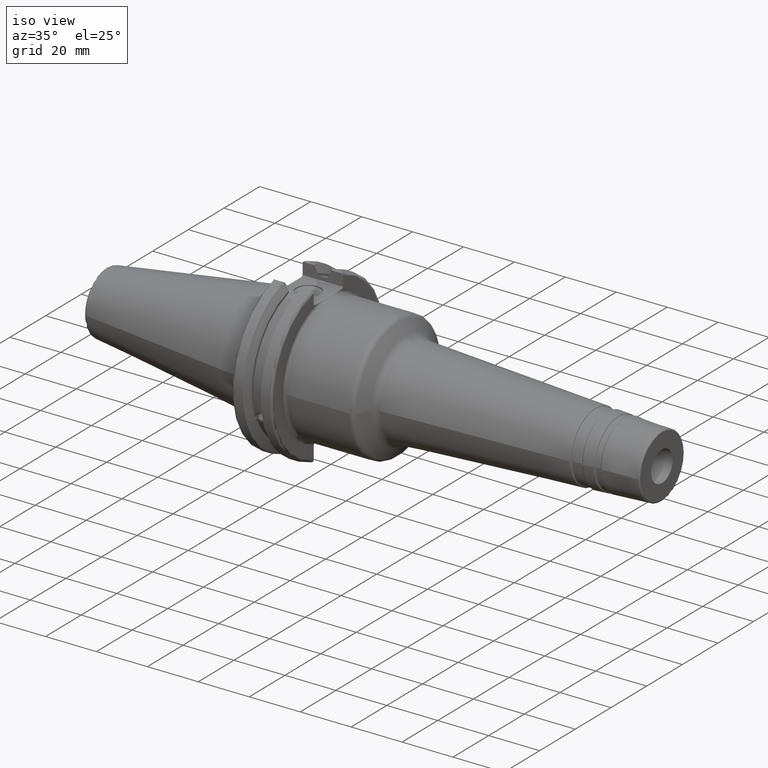
[diagram: clean part render]
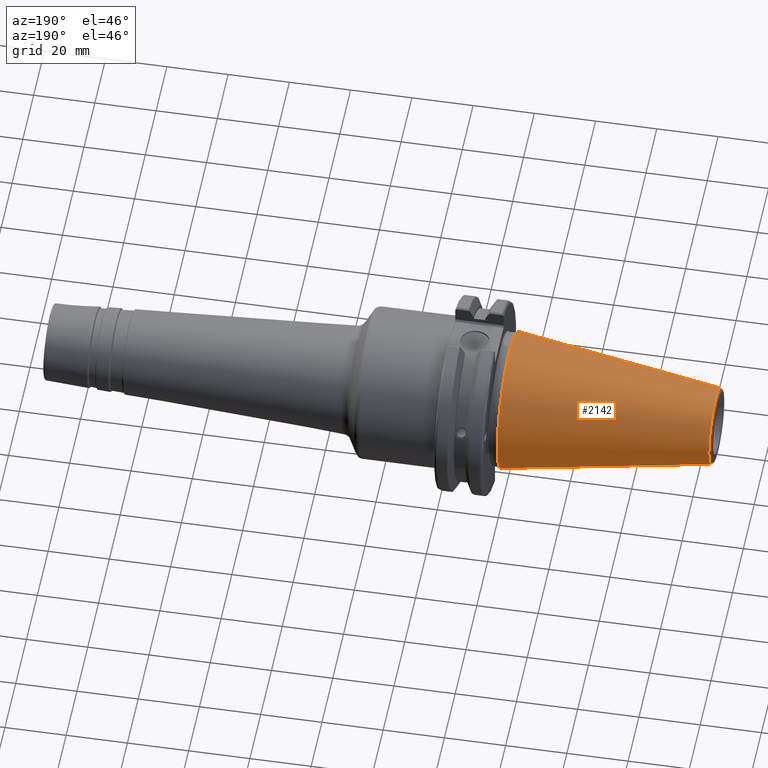
[diagram: tour spotlight — one face highlighted and labeled with its STEP entity id]
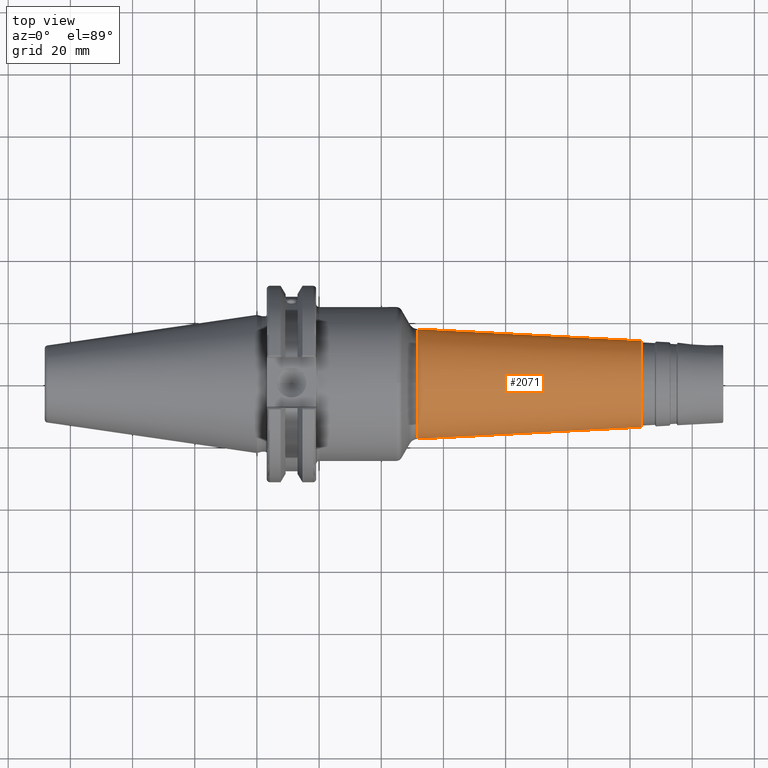
[diagram: tour spotlight — one face highlighted and labeled with its STEP entity id]
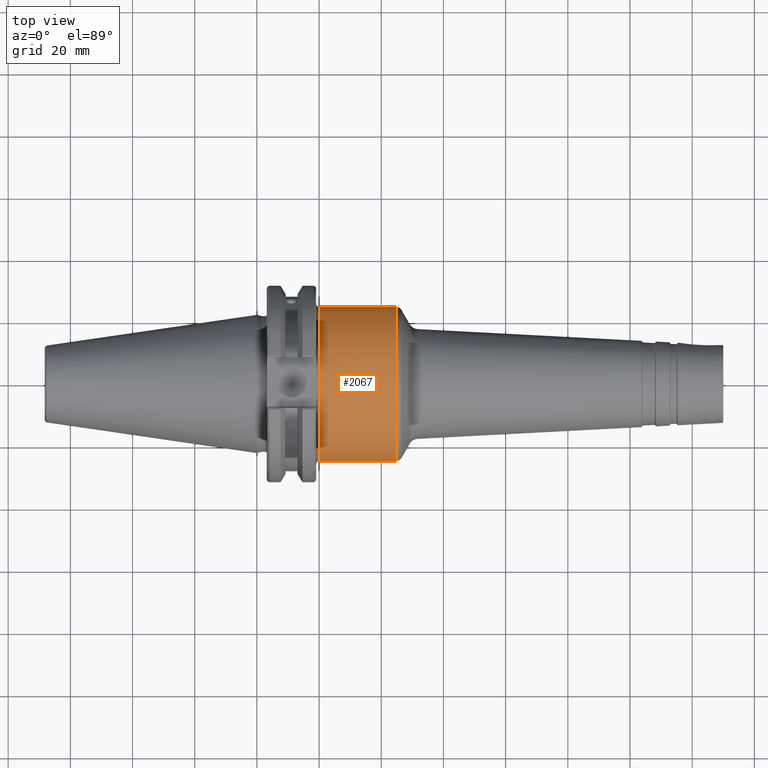
[diagram: tour spotlight — one face highlighted and labeled with its STEP entity id]
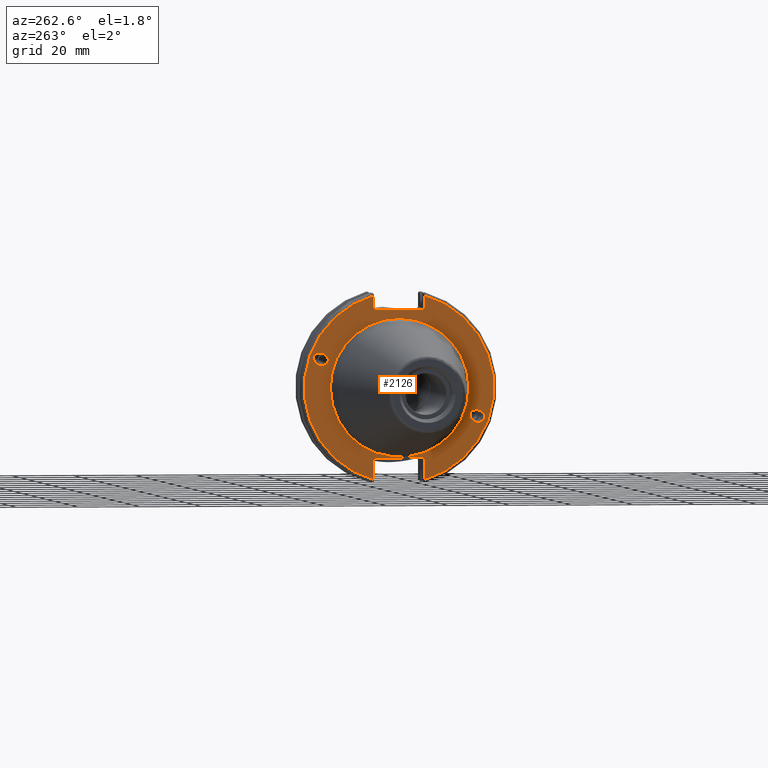
[diagram: tour spotlight — one face highlighted and labeled with its STEP entity id]
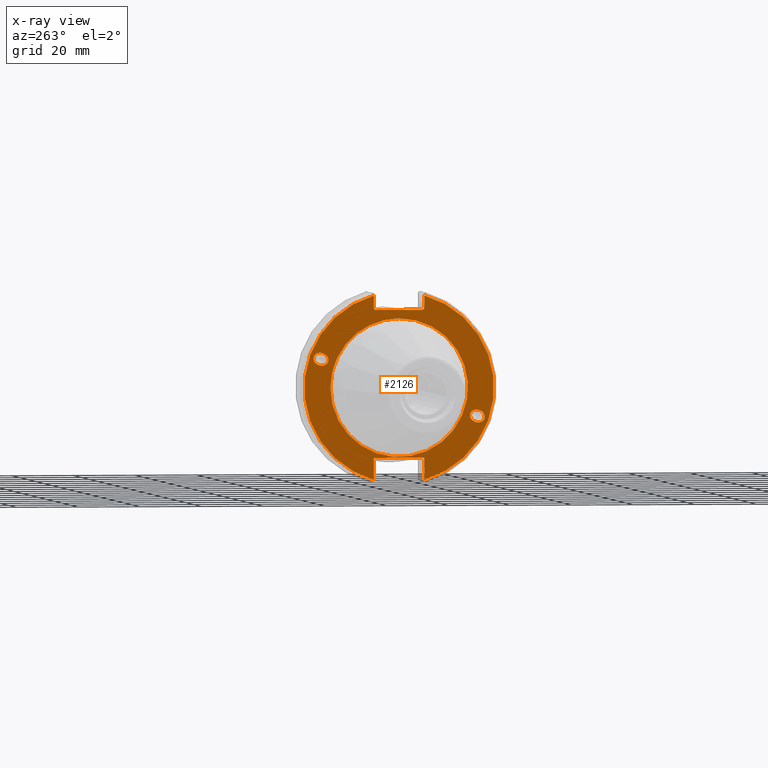
[diagram: x-ray of the same camera — body ghosted, this tour face saturated]
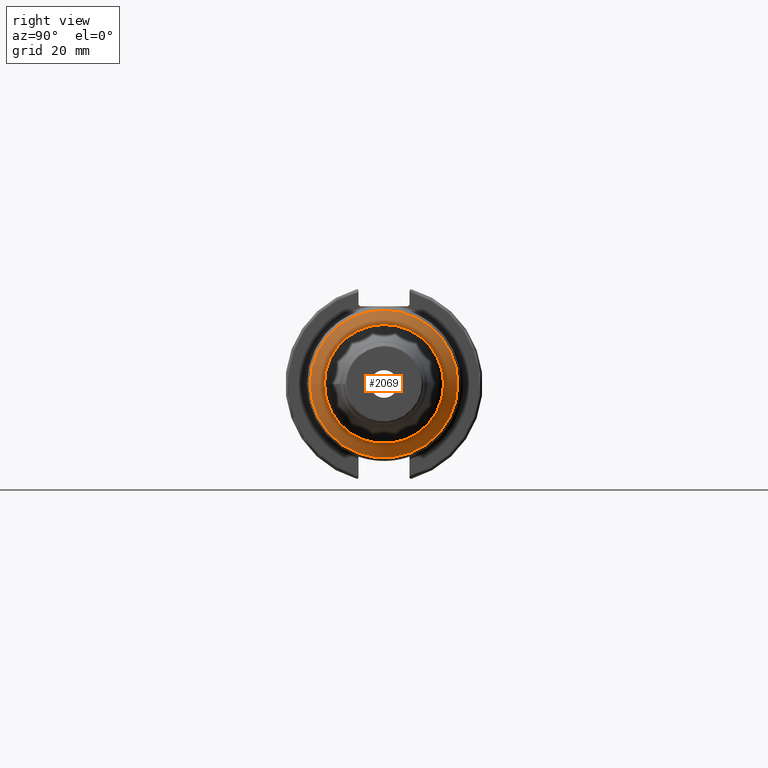
[diagram: tour spotlight — one face highlighted and labeled with its STEP entity id]
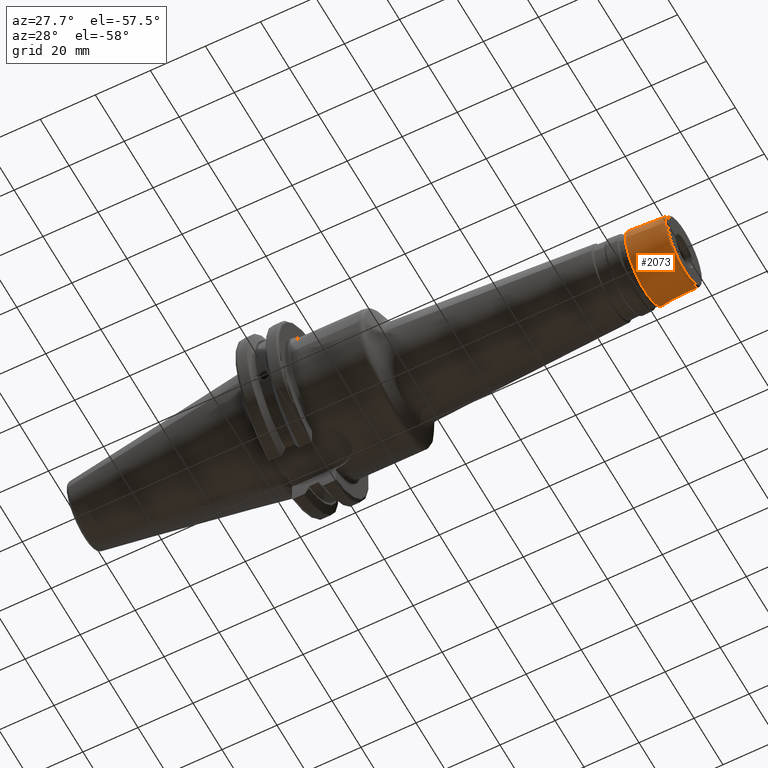
[diagram: tour spotlight — one face highlighted and labeled with its STEP entity id]
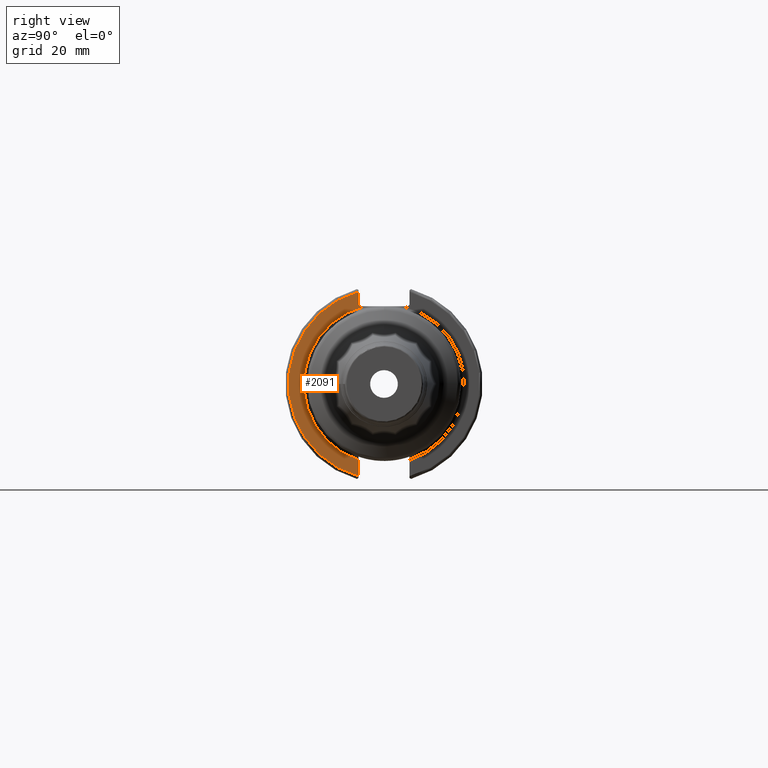
[diagram: tour spotlight — one face highlighted and labeled with its STEP entity id]
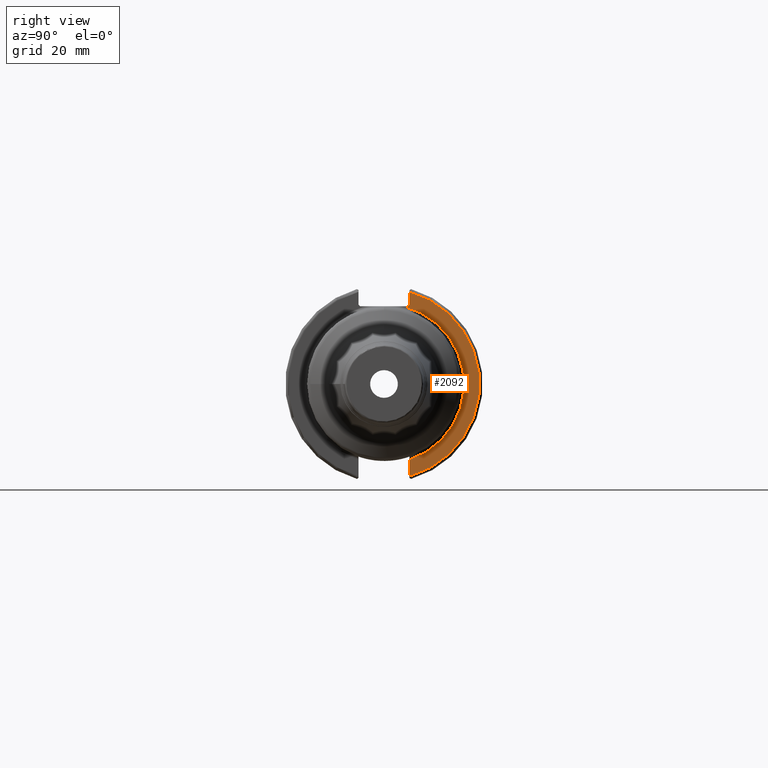
[diagram: tour spotlight — one face highlighted and labeled with its STEP entity id]
A machine part: a face-by-face anatomy tour. The part has 106 B-rep faces; the first image is the clean iso view, then the 8 largest visible faces are spotlighted one at a time (largest first), each with its STEP entity span.

Face 1 — auxiliary view, entity #2142. In plain terms, the highlighted conical surface has half-angle 8.297 deg.
Definition (entity closure, byte-faithful):
#261=FACE_OUTER_BOUND('',#380,.T.);
#380=EDGE_LOOP('',(#1902,#1903,#1904,#1905,#1906,#1907,#1908));
#490=LINE('',#4138,#589);
#589=VECTOR('',#3081,17.2484375);
#755=CIRCLE('',#2433,12.3966635780937);
#756=CIRCLE('',#2434,12.3966635780937);
#760=CIRCLE('',#2438,12.3966635780937);
#763=CIRCLE('',#2443,22.225);
#764=CIRCLE('',#2444,22.225);
#998=VERTEX_POINT('',#4117);
#999=VERTEX_POINT('',#4118);
#1000=VERTEX_POINT('',#4120);
#1005=VERTEX_POINT('',#4134);
#1006=VERTEX_POINT('',#4135);
#1316=EDGE_CURVE('',#998,#999,#755,.T.);
#1317=EDGE_CURVE('',#999,#1000,#756,.T.);
#1321=EDGE_CURVE('',#1000,#998,#760,.T.);
#1324=EDGE_CURVE('',#1005,#1006,#763,.T.);
#1325=EDGE_CURVE('',#1006,#1005,#764,.T.);
#1326=EDGE_CURVE('',#1006,#999,#490,.T.);
#1902=ORIENTED_EDGE('',*,*,#1324,.F.);
#1903=ORIENTED_EDGE('',*,*,#1325,.F.);
#1904=ORIENTED_EDGE('',*,*,#1326,.T.);
#1905=ORIENTED_EDGE('',*,*,#1316,.F.);
#1906=ORIENTED_EDGE('',*,*,#1321,.F.);
#1907=ORIENTED_EDGE('',*,*,#1317,.F.);
#1908=ORIENTED_EDGE('',*,*,#1326,.F.);
#2057=CONICAL_SURFACE('',#2442,17.2484375,0.144812498238939);
#2142=ADVANCED_FACE('',(#261),#2057,.T.);
#2433=AXIS2_PLACEMENT_3D('',#4119,#3057,#3058);
#2434=AXIS2_PLACEMENT_3D('',#4121,#3059,#3060);
#2438=AXIS2_PLACEMENT_3D('',#4127,#3067,#3068);
#2442=AXIS2_PLACEMENT_3D('',#4133,#3075,#3076);
#2443=AXIS2_PLACEMENT_3D('',#4136,#3077,#3078);
#2444=AXIS2_PLACEMENT_3D('',#4137,#3079,#3080);
#3057=DIRECTION('center_axis',(-1.,0.,0.));
#3058=DIRECTION('ref_axis',(0.,-1.,3.06161699786838E-17));
#3059=DIRECTION('center_axis',(-1.,0.,0.));
#3060=DIRECTION('ref_axis',(0.,-1.,3.06161699786838E-17));
#3067=DIRECTION('center_axis',(-1.,0.,0.));
#3068=DIRECTION('ref_axis',(0.,-1.,3.06161699786838E-17));
#3075=DIRECTION('center_axis',(1.,0.,0.));
#3076=DIRECTION('ref_axis',(0.,1.,0.));
#3077=DIRECTION('center_axis',(1.,0.,0.));
#3078=DIRECTION('ref_axis',(0.,0.,-1.));
#3079=DIRECTION('center_axis',(1.,0.,0.));
#3080=DIRECTION('ref_axis',(0.,0.,-1.));
#3081=DIRECTION('',(-0.989532981063282,0.144306893071729,1.76724974695192E-17));
#4117=CARTESIAN_POINT('',(-67.3943068930717,12.3966635780937,-3.79538359275475E-15));
#4118=CARTESIAN_POINT('',(-67.3943068930718,-12.3966635780937,-1.5181534371019E-15));
#4119=CARTESIAN_POINT('Origin',(-67.3943068930717,0.,-1.89769179637738E-15));
#4120=CARTESIAN_POINT('',(-67.3943068930717,-1.5181534371019E-15,12.3966635780937));
#4121=CARTESIAN_POINT('Origin',(-67.3943068930717,0.,-1.89769179637738E-15));
#4127=CARTESIAN_POINT('Origin',(-67.3943068930717,0.,-1.89769179637738E-15));
#4133=CARTESIAN_POINT('Origin',(-34.125,0.,0.));
#4134=CARTESIAN_POINT('',(0.,22.225,0.));
#4135=CARTESIAN_POINT('',(0.,-22.225,-2.72177751110499E-15));
#4136=CARTESIAN_POINT('Origin',(0.,0.,0.));
#4137=CARTESIAN_POINT('Origin',(0.,0.,0.));
#4138=CARTESIAN_POINT('',(-34.125,-17.2484375,-2.11232437746682E-15));

Face 2 — top view, entity #2071. In plain terms, the highlighted conical surface has half-angle 3 deg.
Definition (entity closure, byte-faithful):
#190=FACE_OUTER_BOUND('',#298,.T.);
#298=EDGE_LOOP('',(#1418,#1419,#1420,#1421,#1422,#1423,#1424,#1425));
#416=LINE('',#3345,#515);
#515=VECTOR('',#2565,15.8081634099065);
#628=CIRCLE('',#2218,17.6555296110897);
#629=CIRCLE('',#2219,17.6555296110897);
#630=CIRCLE('',#2220,17.6555296110897);
#631=CIRCLE('',#2222,13.887635362879);
#632=CIRCLE('',#2223,13.887635362879);
#633=CIRCLE('',#2224,13.887635362879);
#805=VERTEX_POINT('',#3332);
#806=VERTEX_POINT('',#3334);
#807=VERTEX_POINT('',#3336);
#808=VERTEX_POINT('',#3340);
#809=VERTEX_POINT('',#3341);
#810=VERTEX_POINT('',#3343);
#1054=EDGE_CURVE('',#805,#806,#628,.T.);
#1055=EDGE_CURVE('',#806,#807,#629,.T.);
#1056=EDGE_CURVE('',#807,#805,#630,.T.);
#1057=EDGE_CURVE('',#808,#809,#631,.T.);
#1058=EDGE_CURVE('',#810,#808,#632,.T.);
#1059=EDGE_CURVE('',#810,#807,#416,.T.);
#1060=EDGE_CURVE('',#809,#810,#633,.T.);
#1418=ORIENTED_EDGE('',*,*,#1057,.F.);
#1419=ORIENTED_EDGE('',*,*,#1058,.F.);
#1420=ORIENTED_EDGE('',*,*,#1059,.T.);
#1421=ORIENTED_EDGE('',*,*,#1055,.F.);
#1422=ORIENTED_EDGE('',*,*,#1054,.F.);
#1423=ORIENTED_EDGE('',*,*,#1056,.F.);
#1424=ORIENTED_EDGE('',*,*,#1059,.F.);
#1425=ORIENTED_EDGE('',*,*,#1060,.F.);
#2043=CONICAL_SURFACE('',#2221,15.8081634099065,0.0523598775598296);
#2071=ADVANCED_FACE('',(#190),#2043,.T.);
#2218=AXIS2_PLACEMENT_3D('',#3335,#2553,#2554);
#2219=AXIS2_PLACEMENT_3D('',#3337,#2555,#2556);
#2220=AXIS2_PLACEMENT_3D('',#3338,#2557,#2558);
#2221=AXIS2_PLACEMENT_3D('',#3339,#2559,#2560);
#2222=AXIS2_PLACEMENT_3D('',#3342,#2561,#2562);
#2223=AXIS2_PLACEMENT_3D('',#3344,#2563,#2564);
#2224=AXIS2_PLACEMENT_3D('',#3346,#2566,#2567);
#2553=DIRECTION('center_axis',(-1.,0.,0.));
#2554=DIRECTION('ref_axis',(0.,-1.,3.06161699786838E-17));
#2555=DIRECTION('center_axis',(-1.,0.,0.));
#2556=DIRECTION('ref_axis',(0.,-1.,3.06161699786838E-17));
#2557=DIRECTION('center_axis',(-1.,0.,0.));
#2558=DIRECTION('ref_axis',(0.,-1.,3.06161699786838E-17));
#2559=DIRECTION('center_axis',(-1.,0.,0.));
#2560=DIRECTION('ref_axis',(0.,1.,0.));
#2561=DIRECTION('center_axis',(1.,0.,0.));
#2562=DIRECTION('ref_axis',(0.,-1.,3.06161699786838E-17));
#2563=DIRECTION('center_axis',(1.,0.,0.));
#2564=DIRECTION('ref_axis',(0.,-1.,3.06161699786838E-17));
#2565=DIRECTION('',(-0.998629534754574,-0.0523359562429436,-6.40930612932368E-18));
#2566=DIRECTION('center_axis',(1.,0.,0.));
#2567=DIRECTION('ref_axis',(0.,-1.,3.06161699786838E-17));
#3332=CARTESIAN_POINT('',(51.6266347931668,-2.16217878254723E-15,17.6555296110897));
#3334=CARTESIAN_POINT('',(51.6266347931668,17.6555296110897,-5.40544695636808E-15));
#3335=CARTESIAN_POINT('Origin',(51.6266347931668,0.,-2.70272347818404E-15));
#3336=CARTESIAN_POINT('',(51.6266347931668,-17.6555296110897,-2.16217878254723E-15));
#3337=CARTESIAN_POINT('Origin',(51.6266347931668,0.,-2.70272347818404E-15));
#3338=CARTESIAN_POINT('Origin',(51.6266347931668,0.,-2.70272347818404E-15));
#3339=CARTESIAN_POINT('Origin',(86.8764817902328,0.,0.));
#3340=CARTESIAN_POINT('',(123.522339968181,13.887635362879,-8.50372409743766E-16));
#3341=CARTESIAN_POINT('',(123.522339968181,-1.70074481948753E-15,13.887635362879));
#3342=CARTESIAN_POINT('Origin',(123.522339968181,0.,-2.12593102435941E-15));
#3343=CARTESIAN_POINT('',(123.522339968181,-13.887635362879,-1.70074481948753E-15));
#3344=CARTESIAN_POINT('Origin',(123.522339968181,0.,-2.12593102435941E-15));
#3345=CARTESIAN_POINT('',(86.8764817902328,-15.8081634099065,-1.93594167203403E-15));
#3346=CARTESIAN_POINT('Origin',(123.522339968181,0.,-2.12593102435941E-15));

Face 3 — top view, entity #2067. In plain terms, the highlighted cylindrical surface (bore or boss wall) has radius 24.75 mm, axis along (1, 0, 0).
Definition (entity closure, byte-faithful):
#122=B_SPLINE_CURVE_WITH_KNOTS('',3,(#3281,#3282,#3283,#3284,#3285,#3286,
#3287,#3288,#3289,#3290,#3291,#3292,#3293,#3294,#3295,#3296,#3297,#3298),
 .UNSPECIFIED.,.F.,.F.,(4,2,2,2,2,2,2,2,4),(-2.48845986202559,-2.17733241913027,
-1.86620497623495,-1.55521745362387,-1.24422993101279,-0.933242408401712,
-0.622254885790633,-0.311127442895316,0.),.UNSPECIFIED.);
#155=CYLINDRICAL_SURFACE('',#2201,24.75);
#186=FACE_OUTER_BOUND('',#294,.T.);
#294=EDGE_LOOP('',(#1386,#1387,#1388,#1389,#1390,#1391,#1392,#1393));
#414=LINE('',#3311,#513);
#513=VECTOR('',#2523,24.75);
#615=CIRCLE('',#2202,24.75);
#616=CIRCLE('',#2203,24.75);
#617=CIRCLE('',#2204,24.75);
#618=CIRCLE('',#2205,24.75);
#619=CIRCLE('',#2206,24.75);
#791=VERTEX_POINT('',#3279);
#792=VERTEX_POINT('',#3280);
#795=VERTEX_POINT('',#3305);
#796=VERTEX_POINT('',#3306);
#797=VERTEX_POINT('',#3308);
#798=VERTEX_POINT('',#3310);
#1035=EDGE_CURVE('',#791,#792,#122,.T.);
#1039=EDGE_CURVE('',#795,#796,#615,.T.);
#1040=EDGE_CURVE('',#797,#795,#616,.T.);
#1041=EDGE_CURVE('',#797,#798,#414,.T.);
#1042=EDGE_CURVE('',#791,#798,#617,.T.);
#1043=EDGE_CURVE('',#798,#792,#618,.T.);
#1044=EDGE_CURVE('',#796,#797,#619,.T.);
#1386=ORIENTED_EDGE('',*,*,#1039,.F.);
#1387=ORIENTED_EDGE('',*,*,#1040,.F.);
#1388=ORIENTED_EDGE('',*,*,#1041,.T.);
#1389=ORIENTED_EDGE('',*,*,#1042,.F.);
#1390=ORIENTED_EDGE('',*,*,#1035,.T.);
#1391=ORIENTED_EDGE('',*,*,#1043,.F.);
#1392=ORIENTED_EDGE('',*,*,#1041,.F.);
#1393=ORIENTED_EDGE('',*,*,#1044,.F.);
#2067=ADVANCED_FACE('',(#186),#155,.T.);
#2201=AXIS2_PLACEMENT_3D('',#3304,#2517,#2518);
#2202=AXIS2_PLACEMENT_3D('',#3307,#2519,#2520);
#2203=AXIS2_PLACEMENT_3D('',#3309,#2521,#2522);
#2204=AXIS2_PLACEMENT_3D('',#3312,#2524,#2525);
#2205=AXIS2_PLACEMENT_3D('',#3313,#2526,#2527);
#2206=AXIS2_PLACEMENT_3D('',#3314,#2528,#2529);
#2517=DIRECTION('center_axis',(1.,0.,0.));
#2518=DIRECTION('ref_axis',(0.,1.,0.));
#2519=DIRECTION('center_axis',(1.,0.,0.));
#2520=DIRECTION('ref_axis',(0.,-1.,1.83697019872103E-16));
#2521=DIRECTION('center_axis',(1.,0.,0.));
#2522=DIRECTION('ref_axis',(0.,-1.,1.83697019872103E-16));
#2523=DIRECTION('',(-1.,0.,0.));
#2524=DIRECTION('center_axis',(-1.,0.,0.));
#2525=DIRECTION('ref_axis',(0.,6.12323399573677E-17,1.));
#2526=DIRECTION('center_axis',(-1.,0.,0.));
#2527=DIRECTION('ref_axis',(0.,6.12323399573677E-17,1.));
#2528=DIRECTION('center_axis',(1.,0.,0.));
#2529=DIRECTION('ref_axis',(0.,-1.,1.83697019872103E-16));
#3279=CARTESIAN_POINT('',(20.05,-8.19,-23.3556502799644));
#3280=CARTESIAN_POINT('',(20.05,8.18999999999999,-23.3556502799644));
#3281=CARTESIAN_POINT('Ctrl Pts',(20.05,-8.19,-23.3556502799644));
#3282=CARTESIAN_POINT('Ctrl Pts',(21.0870914763177,-8.19,-23.3556502799644));
#3283=CARTESIAN_POINT('Ctrl Pts',(22.1874172494719,-7.98112852617488,-23.4319820145953));
#3284=CARTESIAN_POINT('Ctrl Pts',(24.2026226557734,-7.14301766428651,-23.7009173446597));
#3285=CARTESIAN_POINT('Ctrl Pts',(25.1182638848105,-6.51414519102515,-23.8889373554493));
#3286=CARTESIAN_POINT('Ctrl Pts',(26.563820070037,-5.06858900579863,-24.2368381566145));
#3287=CARTESIAN_POINT('Ctrl Pts',(27.1929429534371,-4.15281808103606,-24.420258379043));
#3288=CARTESIAN_POINT('Ctrl Pts',(28.0312404144778,-2.13713243178097,-24.6784841969774));
#3289=CARTESIAN_POINT('Ctrl Pts',(28.24,-1.03662507537027,-24.75));
#3290=CARTESIAN_POINT('Ctrl Pts',(28.24,1.03662507537027,-24.75));
#3291=CARTESIAN_POINT('Ctrl Pts',(28.0312404144778,2.13713243178098,-24.6784841969774));
#3292=CARTESIAN_POINT('Ctrl Pts',(27.1929429534371,4.15281808103607,-24.420258379043));
#3293=CARTESIAN_POINT('Ctrl Pts',(26.563820070037,5.06858900579863,-24.2368381566145));
#3294=CARTESIAN_POINT('Ctrl Pts',(25.1182638848105,6.51414519102515,-23.8889373554493));
#3295=CARTESIAN_POINT('Ctrl Pts',(24.2026226557734,7.14301766428652,-23.7009173446597));
#3296=CARTESIAN_POINT('Ctrl Pts',(22.1874172494719,7.98112852617489,-23.4319820145953));
#3297=CARTESIAN_POINT('Ctrl Pts',(21.0870914763177,8.19,-23.3556502799644));
#3298=CARTESIAN_POINT('Ctrl Pts',(20.05,8.19,-23.3556502799644));
#3304=CARTESIAN_POINT('Origin',(32.5016118750482,0.,0.));
#3305=CARTESIAN_POINT('',(44.7985232117172,24.75,-1.51550041394485E-15));
#3306=CARTESIAN_POINT('',(44.7985232117172,-3.0310008278897E-15,24.75));
#3307=CARTESIAN_POINT('Origin',(44.7985232117172,0.,0.));
#3308=CARTESIAN_POINT('',(44.7985232117172,-24.75,-3.0310008278897E-15));
#3309=CARTESIAN_POINT('Origin',(44.7985232117172,0.,0.));
#3310=CARTESIAN_POINT('',(20.05,-24.75,-3.0310008278897E-15));
#3311=CARTESIAN_POINT('',(32.5016118750482,-24.75,-3.0310008278897E-15));
#3312=CARTESIAN_POINT('Origin',(20.05,0.,0.));
#3313=CARTESIAN_POINT('Origin',(20.05,0.,0.));
#3314=CARTESIAN_POINT('Origin',(44.7985232117172,0.,0.));

Face 4 — auxiliary view, entity #2126. An x-ray twin of the same camera follows (body ghosted, this face saturated) — the face is partly hidden behind the body. In plain terms, the highlighted planar face has unit normal (-1, 0, 0).
Definition (entity closure, byte-faithful):
#39=ELLIPSE('',#2348,2.44154917752291,2.);
#48=ELLIPSE('',#2396,2.44154917752291,2.);
#62=PLANE('',#2409);
#112=FACE_BOUND('',#361,.T.);
#113=FACE_BOUND('',#362,.T.);
#114=FACE_BOUND('',#363,.T.);
#245=FACE_OUTER_BOUND('',#360,.T.);
#360=EDGE_LOOP('',(#1786,#1787,#1788,#1789,#1790,#1791,#1792,#1793,#1794,
#1795));
#361=EDGE_LOOP('',(#1796));
#362=EDGE_LOOP('',(#1797));
#363=EDGE_LOOP('',(#1798,#1799));
#465=LINE('',#3904,#564);
#466=LINE('',#3908,#565);
#467=LINE('',#3910,#566);
#468=LINE('',#3912,#567);
#469=LINE('',#3914,#568);
#470=LINE('',#3916,#569);
#471=LINE('',#3920,#570);
#472=LINE('',#3921,#571);
#564=VECTOR('',#2986,10.);
#565=VECTOR('',#2989,10.);
#566=VECTOR('',#2990,10.);
#567=VECTOR('',#2991,10.);
#568=VECTOR('',#2992,10.);
#569=VECTOR('',#2993,10.);
#570=VECTOR('',#2996,10.);
#571=VECTOR('',#2997,10.);
#742=CIRCLE('',#2405,22.3);
#743=CIRCLE('',#2406,22.3);
#746=CIRCLE('',#2410,30.75);
#747=CIRCLE('',#2411,30.75);
#907=VERTEX_POINT('',#3683);
#952=VERTEX_POINT('',#3876);
#958=VERTEX_POINT('',#3893);
#959=VERTEX_POINT('',#3895);
#961=VERTEX_POINT('',#3902);
#962=VERTEX_POINT('',#3903);
#963=VERTEX_POINT('',#3905);
#964=VERTEX_POINT('',#3907);
#965=VERTEX_POINT('',#3909);
#966=VERTEX_POINT('',#3911);
#967=VERTEX_POINT('',#3913);
#968=VERTEX_POINT('',#3915);
#969=VERTEX_POINT('',#3917);
#970=VERTEX_POINT('',#3919);
#1187=EDGE_CURVE('',#907,#907,#39,.T.);
#1248=EDGE_CURVE('',#952,#952,#48,.T.);
#1256=EDGE_CURVE('',#958,#959,#742,.T.);
#1257=EDGE_CURVE('',#959,#958,#743,.T.);
#1260=EDGE_CURVE('',#961,#962,#465,.T.);
#1261=EDGE_CURVE('',#963,#962,#746,.T.);
#1262=EDGE_CURVE('',#963,#964,#466,.T.);
#1263=EDGE_CURVE('',#965,#964,#467,.T.);
#1264=EDGE_CURVE('',#965,#966,#468,.T.);
#1265=EDGE_CURVE('',#967,#966,#469,.T.);
#1266=EDGE_CURVE('',#967,#968,#470,.T.);
#1267=EDGE_CURVE('',#969,#968,#747,.T.);
#1268=EDGE_CURVE('',#969,#970,#471,.T.);
#1269=EDGE_CURVE('',#970,#961,#472,.T.);
#1786=ORIENTED_EDGE('',*,*,#1260,.T.);
#1787=ORIENTED_EDGE('',*,*,#1261,.F.);
#1788=ORIENTED_EDGE('',*,*,#1262,.T.);
#1789=ORIENTED_EDGE('',*,*,#1263,.F.);
#1790=ORIENTED_EDGE('',*,*,#1264,.T.);
#1791=ORIENTED_EDGE('',*,*,#1265,.F.);
#1792=ORIENTED_EDGE('',*,*,#1266,.T.);
#1793=ORIENTED_EDGE('',*,*,#1267,.F.);
#1794=ORIENTED_EDGE('',*,*,#1268,.T.);
#1795=ORIENTED_EDGE('',*,*,#1269,.T.);
#1796=ORIENTED_EDGE('',*,*,#1187,.T.);
#1797=ORIENTED_EDGE('',*,*,#1248,.T.);
#1798=ORIENTED_EDGE('',*,*,#1257,.F.);
#1799=ORIENTED_EDGE('',*,*,#1256,.F.);
#2126=ADVANCED_FACE('',(#245,#112,#113,#114),#62,.T.);
#2348=AXIS2_PLACEMENT_3D('',#3685,#2843,#2844);
#2396=AXIS2_PLACEMENT_3D('',#3878,#2956,#2957);
#2405=AXIS2_PLACEMENT_3D('',#3896,#2976,#2977);
#2406=AXIS2_PLACEMENT_3D('',#3897,#2978,#2979);
#2409=AXIS2_PLACEMENT_3D('',#3901,#2984,#2985);
#2410=AXIS2_PLACEMENT_3D('',#3906,#2987,#2988);
#2411=AXIS2_PLACEMENT_3D('',#3918,#2994,#2995);
#2843=DIRECTION('center_axis',(1.,0.,0.));
#2844=DIRECTION('ref_axis',(0.,-0.939692620785912,-0.34202014332566));
#2956=DIRECTION('center_axis',(1.,0.,0.));
#2957=DIRECTION('ref_axis',(0.,0.939692620785912,0.34202014332566));
#2976=DIRECTION('center_axis',(-1.,0.,0.));
#2977=DIRECTION('ref_axis',(0.,-1.,1.83697019872103E-16));
#2978=DIRECTION('center_axis',(-1.,0.,0.));
#2979=DIRECTION('ref_axis',(0.,-1.,1.83697019872103E-16));
#2984=DIRECTION('center_axis',(-1.,0.,0.));
#2985=DIRECTION('ref_axis',(0.,0.,1.));
#2986=DIRECTION('',(0.,0.,-1.));
#2987=DIRECTION('center_axis',(1.,0.,0.));
#2988=DIRECTION('ref_axis',(0.,-1.,1.60812264967664E-16));
#2989=DIRECTION('',(0.,0.,-1.));
#2990=DIRECTION('',(0.,-0.70710678118655,0.707106781186545));
#2991=DIRECTION('',(0.,1.,0.));
#2992=DIRECTION('',(0.,-0.707106781186549,-0.707106781186546));
#2993=DIRECTION('',(0.,0.,1.));
#2994=DIRECTION('center_axis',(1.,0.,0.));
#2995=DIRECTION('ref_axis',(0.,1.,1.60812264967664E-16));
#2996=DIRECTION('',(0.,0.,1.));
#2997=DIRECTION('',(0.,-1.,0.));
#3683=CARTESIAN_POINT('',(3.175,-23.0773950158153,-8.39948487016003));
#3685=CARTESIAN_POINT('Origin',(3.175,-25.3717007612195,-9.23454386979306));
#3876=CARTESIAN_POINT('',(3.175,23.0773950158153,8.39948487016003));
#3878=CARTESIAN_POINT('Origin',(3.175,25.3717007612195,9.23454386979306));
#3893=CARTESIAN_POINT('',(3.175,-2.7309623620986E-15,22.3));
#3895=CARTESIAN_POINT('',(3.175,22.3,-6.8274059052465E-15));
#3896=CARTESIAN_POINT('Origin',(3.175,0.,0.));
#3897=CARTESIAN_POINT('Origin',(3.175,0.,0.));
#3901=CARTESIAN_POINT('Origin',(3.175,31.75,0.));
#3902=CARTESIAN_POINT('',(3.175,-8.19,-22.6));
#3903=CARTESIAN_POINT('',(3.175,-8.19,-29.6392712461019));
#3904=CARTESIAN_POINT('',(3.175,-8.19,-11.3));
#3905=CARTESIAN_POINT('',(3.175,-8.18999999999999,29.6392712461019));
#3906=CARTESIAN_POINT('Origin',(3.175,0.,0.));
#3907=CARTESIAN_POINT('',(3.175,-8.18999999999999,25.5));
#3908=CARTESIAN_POINT('',(3.175,-8.18999999999999,12.5));
#3909=CARTESIAN_POINT('',(3.175,-7.68999999999999,25.));
#3910=CARTESIAN_POINT('',(3.175,8.29500000000007,9.01500000000004));
#3911=CARTESIAN_POINT('',(3.175,7.69,25.));
#3912=CARTESIAN_POINT('',(3.175,15.875,25.));
#3913=CARTESIAN_POINT('',(3.175,8.19,25.5));
#3914=CARTESIAN_POINT('',(3.175,7.58000000000002,24.89));
#3915=CARTESIAN_POINT('',(3.175,8.19,29.6392712461019));
#3916=CARTESIAN_POINT('',(3.175,8.19,12.5));
#3917=CARTESIAN_POINT('',(3.175,8.18999999999999,-29.6392712461019));
#3918=CARTESIAN_POINT('Origin',(3.175,0.,0.));
#3919=CARTESIAN_POINT('',(3.175,8.19,-22.6));
#3920=CARTESIAN_POINT('',(3.175,8.19,-11.3));
#3921=CARTESIAN_POINT('',(3.175,15.875,-22.6));

Face 5 — right view, entity #2069. In plain terms, the highlighted conical surface has half-angle 60 deg.
Definition (entity closure, byte-faithful):
#188=FACE_OUTER_BOUND('',#296,.T.);
#296=EDGE_LOOP('',(#1402,#1403,#1404,#1405,#1406,#1407,#1408,#1409));
#415=LINE('',#3329,#514);
#514=VECTOR('',#2546,21.245388964152);
#620=CIRCLE('',#2208,23.75);
#621=CIRCLE('',#2209,23.75);
#623=CIRCLE('',#2211,23.75);
#624=CIRCLE('',#2213,19.1514182153534);
#625=CIRCLE('',#2214,19.1514182153534);
#626=CIRCLE('',#2215,19.1514182153534);
#799=VERTEX_POINT('',#3316);
#800=VERTEX_POINT('',#3317);
#801=VERTEX_POINT('',#3319);
#802=VERTEX_POINT('',#3324);
#803=VERTEX_POINT('',#3325);
#804=VERTEX_POINT('',#3327);
#1045=EDGE_CURVE('',#799,#800,#620,.T.);
#1046=EDGE_CURVE('',#800,#801,#621,.T.);
#1048=EDGE_CURVE('',#801,#799,#623,.T.);
#1049=EDGE_CURVE('',#802,#803,#624,.T.);
#1050=EDGE_CURVE('',#804,#802,#625,.T.);
#1051=EDGE_CURVE('',#804,#800,#415,.T.);
#1052=EDGE_CURVE('',#803,#804,#626,.T.);
#1402=ORIENTED_EDGE('',*,*,#1049,.F.);
#1403=ORIENTED_EDGE('',*,*,#1050,.F.);
#1404=ORIENTED_EDGE('',*,*,#1051,.T.);
#1405=ORIENTED_EDGE('',*,*,#1045,.F.);
#1406=ORIENTED_EDGE('',*,*,#1048,.F.);
#1407=ORIENTED_EDGE('',*,*,#1046,.F.);
#1408=ORIENTED_EDGE('',*,*,#1051,.F.);
#1409=ORIENTED_EDGE('',*,*,#1052,.F.);
#2042=CONICAL_SURFACE('',#2212,21.245388964152,1.0471975511966);
#2069=ADVANCED_FACE('',(#188),#2042,.T.);
#2208=AXIS2_PLACEMENT_3D('',#3318,#2532,#2533);
#2209=AXIS2_PLACEMENT_3D('',#3320,#2534,#2535);
#2211=AXIS2_PLACEMENT_3D('',#3322,#2538,#2539);
#2212=AXIS2_PLACEMENT_3D('',#3323,#2540,#2541);
#2213=AXIS2_PLACEMENT_3D('',#3326,#2542,#2543);
#2214=AXIS2_PLACEMENT_3D('',#3328,#2544,#2545);
#2215=AXIS2_PLACEMENT_3D('',#3330,#2547,#2548);
#2532=DIRECTION('center_axis',(-1.,0.,0.));
#2533=DIRECTION('ref_axis',(0.,-1.,3.06161699786838E-17));
#2534=DIRECTION('center_axis',(-1.,0.,0.));
#2535=DIRECTION('ref_axis',(0.,-1.,3.06161699786838E-17));
#2538=DIRECTION('center_axis',(-1.,0.,0.));
#2539=DIRECTION('ref_axis',(0.,-1.,3.06161699786838E-17));
#2540=DIRECTION('center_axis',(-1.,0.,0.));
#2541=DIRECTION('ref_axis',(0.,1.,0.));
#2542=DIRECTION('center_axis',(1.,0.,0.));
#2543=DIRECTION('ref_axis',(0.,-1.,3.06161699786838E-17));
#2544=DIRECTION('center_axis',(1.,0.,0.));
#2545=DIRECTION('ref_axis',(0.,-1.,3.06161699786838E-17));
#2546=DIRECTION('',(-0.500000000000001,-0.866025403784438,-1.06057523872491E-16));
#2547=DIRECTION('center_axis',(1.,0.,0.));
#2548=DIRECTION('ref_axis',(0.,-1.,3.06161699786838E-17));
#3316=CARTESIAN_POINT('',(46.5305740192861,23.75,-7.27134036993741E-15));
#3317=CARTESIAN_POINT('',(46.5305740192861,-23.75,-2.90853614797496E-15));
#3318=CARTESIAN_POINT('Origin',(46.5305740192861,0.,-3.6356701849687E-15));
#3319=CARTESIAN_POINT('',(46.5305740192861,-2.90853614797496E-15,23.75));
#3320=CARTESIAN_POINT('Origin',(46.5305740192861,0.,-3.6356701849687E-15));
#3322=CARTESIAN_POINT('Origin',(46.5305740192861,0.,-3.6356701849687E-15));
#3323=CARTESIAN_POINT('Origin',(47.9766118750482,0.,0.));
#3324=CARTESIAN_POINT('',(49.1855664505423,19.1514182153534,-1.17268615082824E-15));
#3325=CARTESIAN_POINT('',(49.1855664505423,-2.34537230165649E-15,19.1514182153534));
#3326=CARTESIAN_POINT('Origin',(49.1855664505423,0.,-2.93171537707061E-15));
#3327=CARTESIAN_POINT('',(49.1855664505423,-19.1514182153534,-2.34537230165649E-15));
#3328=CARTESIAN_POINT('Origin',(49.1855664505423,0.,-2.93171537707061E-15));
#3329=CARTESIAN_POINT('',(47.9766118750482,-21.245388964152,-2.60180975915893E-15));
#3330=CARTESIAN_POINT('Origin',(49.1855664505423,0.,-2.93171537707061E-15));

Face 6 — auxiliary view, entity #2073. In plain terms, the highlighted conical surface has half-angle 3 deg.
Definition (entity closure, byte-faithful):
#192=FACE_OUTER_BOUND('',#300,.T.);
#300=EDGE_LOOP('',(#1433,#1434,#1435,#1436,#1437,#1438,#1439,#1440));
#417=LINE('',#3361,#516);
#516=VECTOR('',#2584,12.8848185972057);
#636=CIRCLE('',#2228,12.5248324840198);
#637=CIRCLE('',#2229,12.5248324840198);
#638=CIRCLE('',#2230,12.5248324840198);
#640=CIRCLE('',#2233,13.2575507230413);
#641=CIRCLE('',#2234,13.2575507230413);
#642=CIRCLE('',#2235,13.2575507230413);
#813=VERTEX_POINT('',#3351);
#814=VERTEX_POINT('',#3353);
#815=VERTEX_POINT('',#3355);
#816=VERTEX_POINT('',#3360);
#817=VERTEX_POINT('',#3362);
#818=VERTEX_POINT('',#3364);
#1063=EDGE_CURVE('',#813,#814,#636,.T.);
#1064=EDGE_CURVE('',#814,#815,#637,.T.);
#1065=EDGE_CURVE('',#815,#813,#638,.T.);
#1067=EDGE_CURVE('',#814,#816,#417,.T.);
#1068=EDGE_CURVE('',#817,#816,#640,.T.);
#1069=EDGE_CURVE('',#818,#817,#641,.T.);
#1070=EDGE_CURVE('',#816,#818,#642,.T.);
#1433=ORIENTED_EDGE('',*,*,#1065,.F.);
#1434=ORIENTED_EDGE('',*,*,#1064,.F.);
#1435=ORIENTED_EDGE('',*,*,#1067,.T.);
#1436=ORIENTED_EDGE('',*,*,#1068,.F.);
#1437=ORIENTED_EDGE('',*,*,#1069,.F.);
#1438=ORIENTED_EDGE('',*,*,#1070,.F.);
#1439=ORIENTED_EDGE('',*,*,#1067,.F.);
#1440=ORIENTED_EDGE('',*,*,#1063,.F.);
#2044=CONICAL_SURFACE('',#2232,12.8848185972057,0.0523598775598296);
#2073=ADVANCED_FACE('',(#192),#2044,.T.);
#2228=AXIS2_PLACEMENT_3D('',#3354,#2574,#2575);
#2229=AXIS2_PLACEMENT_3D('',#3356,#2576,#2577);
#2230=AXIS2_PLACEMENT_3D('',#3357,#2578,#2579);
#2232=AXIS2_PLACEMENT_3D('',#3359,#2582,#2583);
#2233=AXIS2_PLACEMENT_3D('',#3363,#2585,#2586);
#2234=AXIS2_PLACEMENT_3D('',#3365,#2587,#2588);
#2235=AXIS2_PLACEMENT_3D('',#3366,#2589,#2590);
#2574=DIRECTION('center_axis',(1.,0.,0.));
#2575=DIRECTION('ref_axis',(0.,-1.,3.06161699786838E-17));
#2576=DIRECTION('center_axis',(1.,0.,0.));
#2577=DIRECTION('ref_axis',(0.,-1.,3.06161699786838E-17));
#2578=DIRECTION('center_axis',(1.,0.,0.));
#2579=DIRECTION('ref_axis',(0.,-1.,3.06161699786838E-17));
#2582=DIRECTION('center_axis',(-1.,0.,0.));
#2583=DIRECTION('ref_axis',(0.,1.,0.));
#2584=DIRECTION('',(-0.998629534754574,-0.0523359562429436,-6.40930612932368E-18));
#2585=DIRECTION('center_axis',(-1.,0.,0.));
#2586=DIRECTION('ref_axis',(0.,-1.,3.06161699786838E-17));
#2587=DIRECTION('center_axis',(-1.,0.,0.));
#2588=DIRECTION('ref_axis',(0.,-1.,3.06161699786838E-17));
#2589=DIRECTION('center_axis',(-1.,0.,0.));
#2590=DIRECTION('ref_axis',(0.,-1.,3.06161699786838E-17));
#3351=CARTESIAN_POINT('',(149.526167978121,-1.53384960114117E-15,12.5248324840198));
#3353=CARTESIAN_POINT('',(149.526167978121,-12.5248324840198,-1.53384960114117E-15));
#3354=CARTESIAN_POINT('Origin',(149.526167978121,0.,-1.91731200142646E-15));
#3355=CARTESIAN_POINT('',(149.526167978121,12.5248324840198,-7.66924800570585E-16));
#3356=CARTESIAN_POINT('Origin',(149.526167978121,0.,-1.91731200142646E-15));
#3357=CARTESIAN_POINT('Origin',(149.526167978121,0.,-1.91731200142646E-15));
#3359=CARTESIAN_POINT('Origin',(142.657223746739,0.,0.));
#3360=CARTESIAN_POINT('',(135.545071105762,-13.2575507230413,-1.62358170575062E-15));
#3361=CARTESIAN_POINT('',(142.657223746739,-12.8848185972057,-1.57793518526622E-15));
#3362=CARTESIAN_POINT('',(135.545071105762,13.2575507230413,-4.05895426437655E-15));
#3363=CARTESIAN_POINT('Origin',(135.545071105762,0.,-2.02947713218828E-15));
#3364=CARTESIAN_POINT('',(135.545071105762,-1.62358170575062E-15,13.2575507230413));
#3365=CARTESIAN_POINT('Origin',(135.545071105762,0.,-2.02947713218828E-15));
#3366=CARTESIAN_POINT('Origin',(135.545071105762,0.,-2.02947713218828E-15));

Face 7 — right view, entity #2091. In plain terms, the highlighted planar face has unit normal (1, 0, 0).
Definition (entity closure, byte-faithful):
#50=PLANE('',#2307);
#210=FACE_OUTER_BOUND('',#319,.T.);
#319=EDGE_LOOP('',(#1572,#1573,#1574,#1575,#1576,#1577));
#425=LINE('',#3525,#524);
#426=LINE('',#3527,#525);
#427=LINE('',#3529,#526);
#428=LINE('',#3532,#527);
#524=VECTOR('',#2742,10.);
#525=VECTOR('',#2743,10.);
#526=VECTOR('',#2744,10.);
#527=VECTOR('',#2747,10.);
#695=CIRCLE('',#2305,25.75);
#697=CIRCLE('',#2308,30.75);
#863=VERTEX_POINT('',#3487);
#865=VERTEX_POINT('',#3499);
#867=VERTEX_POINT('',#3524);
#868=VERTEX_POINT('',#3526);
#869=VERTEX_POINT('',#3528);
#870=VERTEX_POINT('',#3530);
#1131=EDGE_CURVE('',#863,#865,#695,.T.);
#1135=EDGE_CURVE('',#863,#867,#425,.T.);
#1136=EDGE_CURVE('',#868,#867,#426,.T.);
#1137=EDGE_CURVE('',#868,#869,#427,.T.);
#1138=EDGE_CURVE('',#870,#869,#697,.T.);
#1139=EDGE_CURVE('',#870,#865,#428,.T.);
#1572=ORIENTED_EDGE('',*,*,#1131,.F.);
#1573=ORIENTED_EDGE('',*,*,#1135,.T.);
#1574=ORIENTED_EDGE('',*,*,#1136,.F.);
#1575=ORIENTED_EDGE('',*,*,#1137,.T.);
#1576=ORIENTED_EDGE('',*,*,#1138,.F.);
#1577=ORIENTED_EDGE('',*,*,#1139,.T.);
#2091=ADVANCED_FACE('',(#210),#50,.T.);
#2305=AXIS2_PLACEMENT_3D('',#3500,#2736,#2737);
#2307=AXIS2_PLACEMENT_3D('',#3523,#2740,#2741);
#2308=AXIS2_PLACEMENT_3D('',#3531,#2745,#2746);
#2736=DIRECTION('center_axis',(1.,0.,0.));
#2737=DIRECTION('ref_axis',(0.,6.12323399573677E-17,1.));
#2740=DIRECTION('center_axis',(1.,0.,0.));
#2741=DIRECTION('ref_axis',(0.,0.,-1.));
#2742=DIRECTION('',(0.,-1.,0.));
#2743=DIRECTION('',(0.,0.70710678118655,-0.707106781186545));
#2744=DIRECTION('',(0.,0.,1.));
#2745=DIRECTION('center_axis',(-1.,0.,0.));
#2746=DIRECTION('ref_axis',(0.,-1.,1.60812264967664E-16));
#2747=DIRECTION('',(0.,0.,1.));
#3487=CARTESIAN_POINT('',(19.05,-6.16948133962654,25.));
#3499=CARTESIAN_POINT('',(19.05,-8.19,-24.4128326910254));
#3500=CARTESIAN_POINT('Origin',(19.05,0.,0.));
#3523=CARTESIAN_POINT('Origin',(19.05,0.,0.));
#3524=CARTESIAN_POINT('',(19.05,-7.69,25.));
#3525=CARTESIAN_POINT('',(19.05,0.,25.));
#3526=CARTESIAN_POINT('',(19.05,-8.19,25.5));
#3527=CARTESIAN_POINT('',(19.05,0.357500000000014,16.9525));
#3528=CARTESIAN_POINT('',(19.05,-8.19,29.6392712461019));
#3529=CARTESIAN_POINT('',(19.05,-8.19,12.5));
#3530=CARTESIAN_POINT('',(19.05,-8.19,-29.6392712461019));
#3531=CARTESIAN_POINT('Origin',(19.05,0.,0.));
#3532=CARTESIAN_POINT('',(19.05,-8.19,-11.3));

Face 8 — right view, entity #2092. In plain terms, the highlighted planar face has unit normal (1, 0, 0).
Definition (entity closure, byte-faithful):
#51=PLANE('',#2309);
#211=FACE_OUTER_BOUND('',#320,.T.);
#320=EDGE_LOOP('',(#1578,#1579,#1580,#1581,#1582,#1583));
#429=LINE('',#3535,#528);
#430=LINE('',#3539,#529);
#431=LINE('',#3541,#530);
#432=LINE('',#3542,#531);
#528=VECTOR('',#2750,10.);
#529=VECTOR('',#2753,10.);
#530=VECTOR('',#2754,10.);
#531=VECTOR('',#2755,10.);
#696=CIRCLE('',#2306,25.75);
#698=CIRCLE('',#2310,30.75);
#864=VERTEX_POINT('',#3488);
#866=VERTEX_POINT('',#3511);
#871=VERTEX_POINT('',#3534);
#872=VERTEX_POINT('',#3536);
#873=VERTEX_POINT('',#3538);
#874=VERTEX_POINT('',#3540);
#1134=EDGE_CURVE('',#866,#864,#696,.T.);
#1140=EDGE_CURVE('',#866,#871,#429,.T.);
#1141=EDGE_CURVE('',#872,#871,#698,.T.);
#1142=EDGE_CURVE('',#872,#873,#430,.T.);
#1143=EDGE_CURVE('',#874,#873,#431,.T.);
#1144=EDGE_CURVE('',#874,#864,#432,.T.);
#1578=ORIENTED_EDGE('',*,*,#1134,.F.);
#1579=ORIENTED_EDGE('',*,*,#1140,.T.);
#1580=ORIENTED_EDGE('',*,*,#1141,.F.);
#1581=ORIENTED_EDGE('',*,*,#1142,.T.);
#1582=ORIENTED_EDGE('',*,*,#1143,.F.);
#1583=ORIENTED_EDGE('',*,*,#1144,.T.);
#2092=ADVANCED_FACE('',(#211),#51,.T.);
#2306=AXIS2_PLACEMENT_3D('',#3522,#2738,#2739);
#2309=AXIS2_PLACEMENT_3D('',#3533,#2748,#2749);
#2310=AXIS2_PLACEMENT_3D('',#3537,#2751,#2752);
#2738=DIRECTION('center_axis',(1.,0.,0.));
#2739=DIRECTION('ref_axis',(0.,6.12323399573677E-17,1.));
#2748=DIRECTION('center_axis',(1.,0.,0.));
#2749=DIRECTION('ref_axis',(0.,0.,-1.));
#2750=DIRECTION('',(0.,0.,-1.));
#2751=DIRECTION('center_axis',(-1.,0.,0.));
#2752=DIRECTION('ref_axis',(0.,1.,-6.12323399573677E-17));
#2753=DIRECTION('',(0.,0.,-1.));
#2754=DIRECTION('',(0.,0.707106781186549,0.707106781186546));
#2755=DIRECTION('',(0.,-1.,0.));
#3488=CARTESIAN_POINT('',(19.05,6.16948133962654,25.));
#3511=CARTESIAN_POINT('',(19.05,8.19,-24.4128326910254));
#3522=CARTESIAN_POINT('Origin',(19.05,0.,0.));
#3533=CARTESIAN_POINT('Origin',(19.05,0.,0.));
#3534=CARTESIAN_POINT('',(19.05,8.19,-29.6392712461019));
#3535=CARTESIAN_POINT('',(19.05,8.19,-11.3));
#3536=CARTESIAN_POINT('',(19.05,8.19,29.6392712461019));
#3537=CARTESIAN_POINT('Origin',(19.05,0.,0.));
#3538=CARTESIAN_POINT('',(19.05,8.19,25.5));
#3539=CARTESIAN_POINT('',(19.05,8.19,12.5));
#3540=CARTESIAN_POINT('',(19.05,7.69,25.));
#3541=CARTESIAN_POINT('',(19.05,-0.35750000000001,16.9525));
#3542=CARTESIAN_POINT('',(19.05,0.,25.));